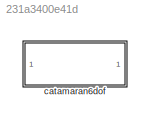
MODEL slx_231a3400e41d
KIND model
CONFIG AbsTol = auto
CONFIG EnableMultiTasking = off
CONFIG FixedStep = auto
CONFIG MaxStep = auto
CONFIG MinStep = auto
CONFIG RelTol = 1e-3
CONFIG SampleTimeConstraint = Unconstrained
CONFIG SolverName = VariableStepAuto
CONFIG StartTime = 0.0
CONFIG StopTime = 10.0
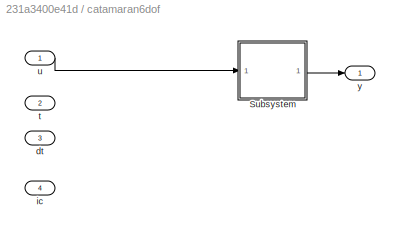
BLOCK [SubSystem] catamaran6dof
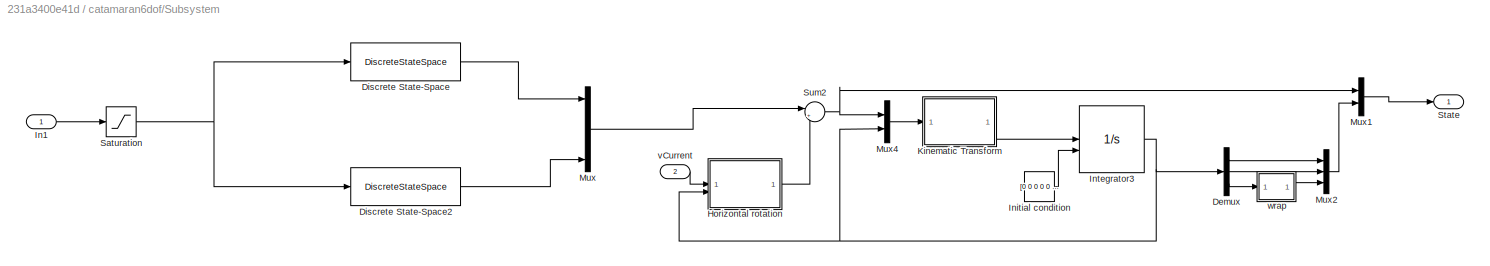
BLOCK [SubSystem] catamaran6dof/Subsystem
BLOCK [Demux] catamaran6dof/Subsystem/Demux
  Outputs = 3
BLOCK [DiscreteStateSpace] catamaran6dof/Subsystem/Discrete State-Space
  A = ss_x.A
  B = ss_x.B
  C = ss_x.C
  D = ss_x.D
  SampleTime = ss_x.Ts
BLOCK [DiscreteStateSpace] catamaran6dof/Subsystem/Discrete State-Space2
  A = ss_yaw.A
  B = ss_yaw.B
  C = ss_yaw.C
  D = ss_yaw.D
  SampleTime = ss_yaw.Ts
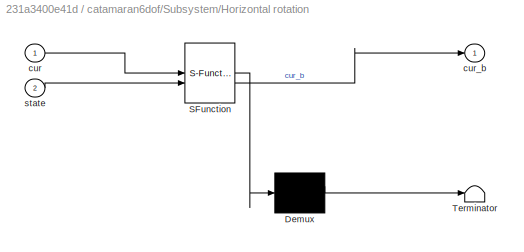
BLOCK [SubSystem] catamaran6dof/Subsystem/Horizontal rotation
  ErrorFcn = Stateflow.Translate.translate
  PermitHierarchicalResolution = ExplicitOnly
  SFBlockType = MATLAB Function
  TreatAsAtomicUnit = on
BLOCK [Demux] catamaran6dof/Subsystem/Horizontal rotation/ Demux 
  Outputs = 1
BLOCK [S-Function] catamaran6dof/Subsystem/Horizontal rotation/ SFunction 
  EnableBusSupport = off
  FunctionName = sf_sfun
  PortCounts = [2 2]
  SFcnIsStateOwnerBlock = off
  SFunctionDeploymentMode = off
  Tag = Stateflow S-Function 1
BLOCK [Terminator] catamaran6dof/Subsystem/Horizontal rotation/ Terminator 
BLOCK [Inport] catamaran6dof/Subsystem/Horizontal rotation/cur
BLOCK [Outport] catamaran6dof/Subsystem/Horizontal rotation/cur_b
BLOCK [Inport] catamaran6dof/Subsystem/Horizontal rotation/state
  Port = 2
BLOCK [Inport] catamaran6dof/Subsystem/In1
BLOCK [Constant] catamaran6dof/Subsystem/Initial condition
  Value = [0 0 0 0 0 0]'
BLOCK [Integrator] catamaran6dof/Subsystem/Integrator3
  InitialConditionSource = external
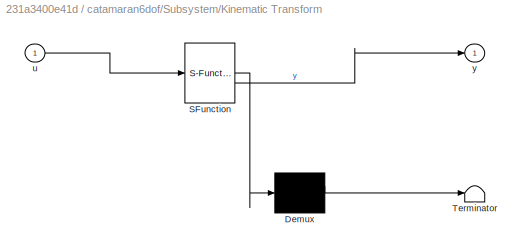
BLOCK [SubSystem] catamaran6dof/Subsystem/Kinematic Transform
  ErrorFcn = Stateflow.Translate.translate
  PermitHierarchicalResolution = ExplicitOnly
  SFBlockType = MATLAB Function
  TreatAsAtomicUnit = on
BLOCK [Demux] catamaran6dof/Subsystem/Kinematic Transform/ Demux 
  Outputs = 1
BLOCK [S-Function] catamaran6dof/Subsystem/Kinematic Transform/ SFunction 
  EnableBusSupport = off
  FunctionName = sf_sfun
  PortCounts = [1 2]
  SFcnIsStateOwnerBlock = off
  SFunctionDeploymentMode = off
  Tag = Stateflow S-Function 8
BLOCK [Terminator] catamaran6dof/Subsystem/Kinematic Transform/ Terminator 
BLOCK [Inport] catamaran6dof/Subsystem/Kinematic Transform/u
BLOCK [Outport] catamaran6dof/Subsystem/Kinematic Transform/y
BLOCK [Mux] catamaran6dof/Subsystem/Mux
  DisplayOption = bar
  Inputs = 6
BLOCK [Mux] catamaran6dof/Subsystem/Mux1
  DisplayOption = bar
  Inputs = 2
BLOCK [Mux] catamaran6dof/Subsystem/Mux2
  DisplayOption = bar
  Inputs = 3
BLOCK [Mux] catamaran6dof/Subsystem/Mux4
  DisplayOption = bar
  Inputs = 2
BLOCK [Saturate] catamaran6dof/Subsystem/Saturation
  LowerLimit = -1
  UpperLimit = 1
BLOCK [Outport] catamaran6dof/Subsystem/State
BLOCK [Sum] catamaran6dof/Subsystem/Sum2
  Inputs = |++
BLOCK [Inport] catamaran6dof/Subsystem/vCurrent
  Port = 2
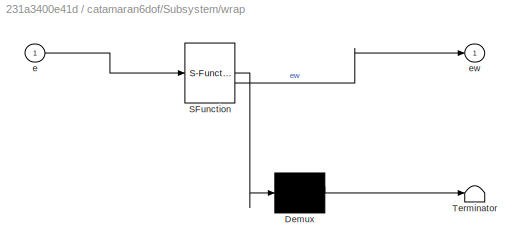
BLOCK [SubSystem] catamaran6dof/Subsystem/wrap
  ErrorFcn = Stateflow.Translate.translate
  LibrarySourceBlock = simulink/User-Defined\nFunctions/MATLAB Function
  PermitHierarchicalResolution = ExplicitOnly
  SFBlockType = MATLAB Function
  TreatAsAtomicUnit = on
BLOCK [Demux] catamaran6dof/Subsystem/wrap/ Demux 
  Outputs = 1
BLOCK [S-Function] catamaran6dof/Subsystem/wrap/ SFunction 
  EnableBusSupport = off
  FunctionName = sf_sfun
  PortCounts = [1 2]
  SFcnIsStateOwnerBlock = off
  SFunctionDeploymentMode = off
  Tag = Stateflow S-Function 9
BLOCK [Terminator] catamaran6dof/Subsystem/wrap/ Terminator 
BLOCK [Inport] catamaran6dof/Subsystem/wrap/e
BLOCK [Outport] catamaran6dof/Subsystem/wrap/ew
BLOCK [Inport] catamaran6dof/dt
  Port = 3
BLOCK [Inport] catamaran6dof/ic
  Port = 4
BLOCK [Inport] catamaran6dof/t
  Port = 2
BLOCK [Inport] catamaran6dof/u
  PortDimensions = 2
BLOCK [Outport] catamaran6dof/y
  PortDimensions = 6
LINE catamaran6dof/Subsystem/Demux:1 -> catamaran6dof/Subsystem/Mux2:1
LINE catamaran6dof/Subsystem/Demux:2 -> catamaran6dof/Subsystem/Mux2:2
LINE catamaran6dof/Subsystem/Demux:3 -> catamaran6dof/Subsystem/wrap:1
LINE catamaran6dof/Subsystem/Discrete State-Space2:1 -> catamaran6dof/Subsystem/Mux:6
LINE catamaran6dof/Subsystem/Discrete State-Space:1 -> catamaran6dof/Subsystem/Mux:1
LINE catamaran6dof/Subsystem/Horizontal rotation:1 -> catamaran6dof/Subsystem/Sum2:2
LINE catamaran6dof/Subsystem/In1:1 -> catamaran6dof/Subsystem/Saturation:1
LINE catamaran6dof/Subsystem/Initial condition:1 -> catamaran6dof/Subsystem/Integrator3:2
NET catamaran6dof/Subsystem/Integrator3:1 -> catamaran6dof/Subsystem/Demux:1, catamaran6dof/Subsystem/Horizontal rotation:2, catamaran6dof/Subsystem/Mux4:2
LINE catamaran6dof/Subsystem/Kinematic Transform:1 -> catamaran6dof/Subsystem/Integrator3:1
LINE catamaran6dof/Subsystem/Mux1:1 -> catamaran6dof/Subsystem/State:1
LINE catamaran6dof/Subsystem/Mux2:1 -> catamaran6dof/Subsystem/Mux1:2
LINE catamaran6dof/Subsystem/Mux4:1 -> catamaran6dof/Subsystem/Kinematic Transform:1
LINE catamaran6dof/Subsystem/Mux:1 -> catamaran6dof/Subsystem/Sum2:1
NET catamaran6dof/Subsystem/Saturation:1 -> catamaran6dof/Subsystem/Discrete State-Space2:1, catamaran6dof/Subsystem/Discrete State-Space:1
NET catamaran6dof/Subsystem/Sum2:1 -> catamaran6dof/Subsystem/Mux1:1, catamaran6dof/Subsystem/Mux4:1
LINE catamaran6dof/Subsystem/vCurrent:1 -> catamaran6dof/Subsystem/Horizontal rotation:1
LINE catamaran6dof/Subsystem/wrap:1 -> catamaran6dof/Subsystem/Mux2:3
LINE catamaran6dof/Subsystem:1 -> catamaran6dof/y:1
LINE catamaran6dof/u:1 -> catamaran6dof/Subsystem:1
note: NET lines group one-source signal fan-out (src -> all destinations, sorted); 1:1 wires keep LINE
CHART catamaran6dof/Subsystem/Kinematic Transform states=1 transitions=1
  STATE_LABEL 'eML_blk_kernel()'
  STATE_LABEL 'SCRIPT:\nfunction y = fcn(u)\n%#codegen\nif (length(u)<12) \n    y = zeros(12,1);\n    return;\nend\n\ninput = u;\n% Read inputs\nu = input(1,1);\nv = input(2,1);\nw = input(3,1);\np = input(4,1);\nq = input(5,1);\nr = input(6,1);\n\n%x = input(7,1);\n%y = input(8,1);\n%z = input(9,1);\nphi = input(10,1);\ntheta = input(11,1);\nPsi = input(12,1);\n\nDOF6 = 1; % Select degrees of freedom\n\ntmp1 = []; tmp2 = [];\n\nif DOF6 ==...<+1153ch>'
CHART catamaran6dof/Subsystem/wrap states=1 transitions=1
  STATE_LABEL 'eML_blk_kernel()'
  STATE_LABEL 'SCRIPT:\nfunction ew = wrap(e)\n\new = mod(e, 2*pi);\n\nif ew > pi\n   ew = -2*pi + ew;\nelseif ew <= -pi \n   ew = 2*pi + ew;\nend\n'
CHART catamaran6dof/Subsystem/Horizontal rotation states=1 transitions=1
  STATE_LABEL 'eML_blk_kernel()'
  STATE_LABEL 'SCRIPT:\nfunction cur_b = fcn(cur, state)\ncur_b = zeros(6,1);\nPsi = state(6,1);\nR_z_psi = [cos(Psi) sin(Psi); -sin(Psi) cos(Psi)];\n\ncur_ne_b = R_z_psi*cur;\ncur_b(1) = cur_ne_b(1);\ncur_b(2) = cur_ne_b(2);\n\n'
CHART  states=0 transitions=0
CHART  states=0 transitions=0
CHART  states=0 transitions=0
